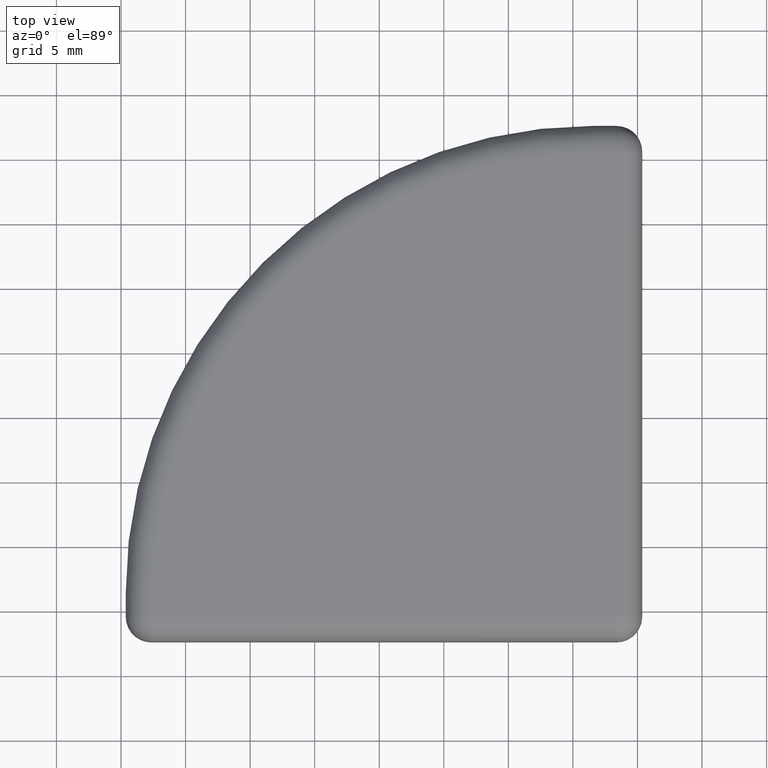
[diagram: clean part render]
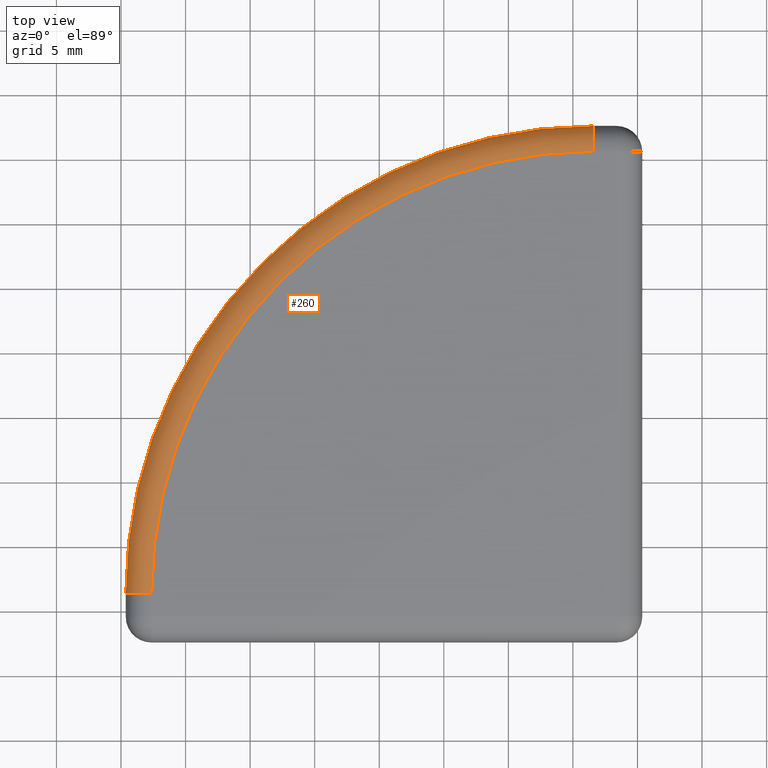
[diagram: same view with one face highlighted and labeled with its STEP entity id]
A machine part, top view. The second image highlights one B-rep face of the part: STEP entity #260.
In plain terms, the highlighted toroidal blend (fillet) surface has major radius 34.21 mm and minor (blend) radius 2 mm.
Its self-contained STEP definition (entity closure, byte-faithful):
#24=TOROIDAL_SURFACE('',#305,34.21,2.);
#27=FACE_OUTER_BOUND('',#45,.T.);
#45=EDGE_LOOP('',(#184,#185,#186,#187));
#104=CIRCLE('',#304,2.);
#105=CIRCLE('',#306,2.00000000000004);
#106=CIRCLE('',#307,34.21);
#107=CIRCLE('',#308,36.21);
#123=VERTEX_POINT('',#439);
#124=VERTEX_POINT('',#441);
#125=VERTEX_POINT('',#445);
#126=VERTEX_POINT('',#446);
#145=EDGE_CURVE('',#123,#124,#104,.T.);
#147=EDGE_CURVE('',#125,#126,#105,.T.);
#148=EDGE_CURVE('',#126,#124,#106,.T.);
#149=EDGE_CURVE('',#123,#125,#107,.T.);
#184=ORIENTED_EDGE('',*,*,#147,.T.);
#185=ORIENTED_EDGE('',*,*,#148,.T.);
#186=ORIENTED_EDGE('',*,*,#145,.F.);
#187=ORIENTED_EDGE('',*,*,#149,.T.);
#260=ADVANCED_FACE('',(#27),#24,.T.);
#304=AXIS2_PLACEMENT_3D('',#442,#349,#350);
#305=AXIS2_PLACEMENT_3D('',#444,#352,#353);
#306=AXIS2_PLACEMENT_3D('',#447,#354,#355);
#307=AXIS2_PLACEMENT_3D('',#448,#356,#357);
#308=AXIS2_PLACEMENT_3D('',#449,#358,#359);
#349=DIRECTION('center_axis',(1.,-1.28785870856518E-13,0.));
#350=DIRECTION('ref_axis',(1.28785870856518E-13,1.,0.));
#352=DIRECTION('center_axis',(0.,0.,1.));
#353=DIRECTION('ref_axis',(1.,0.,0.));
#354=DIRECTION('center_axis',(-4.44089209850053E-15,1.,0.));
#355=DIRECTION('ref_axis',(-1.,-4.44089209850053E-15,0.));
#356=DIRECTION('center_axis',(0.,0.,-1.));
#357=DIRECTION('ref_axis',(-0.707106781186547,0.707106781186548,0.));
#358=DIRECTION('center_axis',(0.,0.,1.));
#359=DIRECTION('ref_axis',(-0.707106781186547,0.707106781186548,0.));
#439=CARTESIAN_POINT('',(41.5792019380735,42.6308327576005,1.));
#441=CARTESIAN_POINT('',(41.5792019380733,40.6308327576005,3.));
#442=CARTESIAN_POINT('Origin',(41.5792019380733,40.6308327576005,1.));
#444=CARTESIAN_POINT('Origin',(41.5792019380735,6.42083275760046,1.));
#445=CARTESIAN_POINT('',(5.3692019380735,6.42083275760046,1.));
#446=CARTESIAN_POINT('',(7.36920193807354,6.42083275760047,3.));
#447=CARTESIAN_POINT('Origin',(7.36920193807354,6.42083275760047,1.));
#448=CARTESIAN_POINT('Origin',(41.5792019380735,6.42083275760046,3.));
#449=CARTESIAN_POINT('Origin',(41.5792019380735,6.42083275760046,1.));